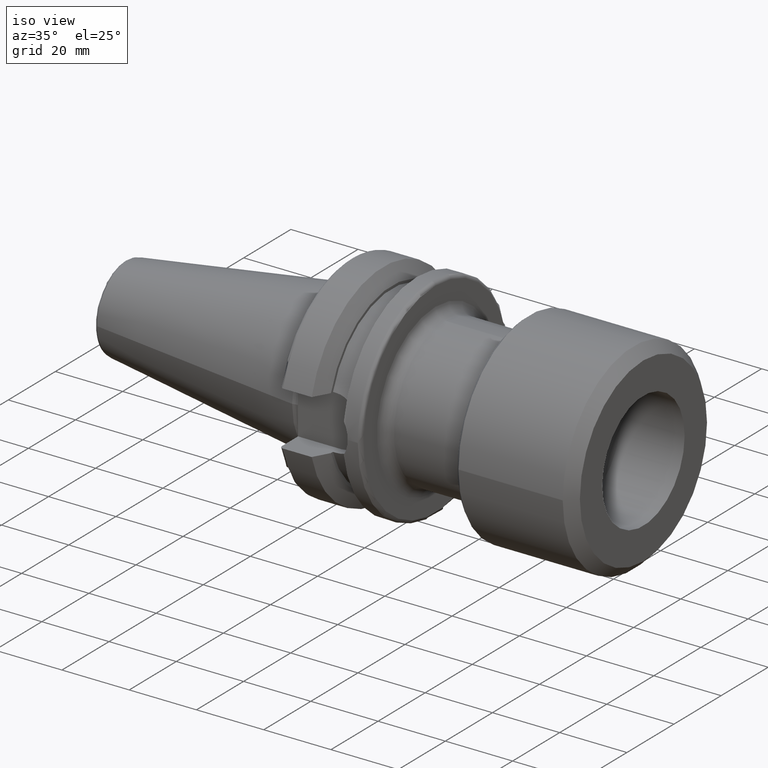
[diagram: clean part render]
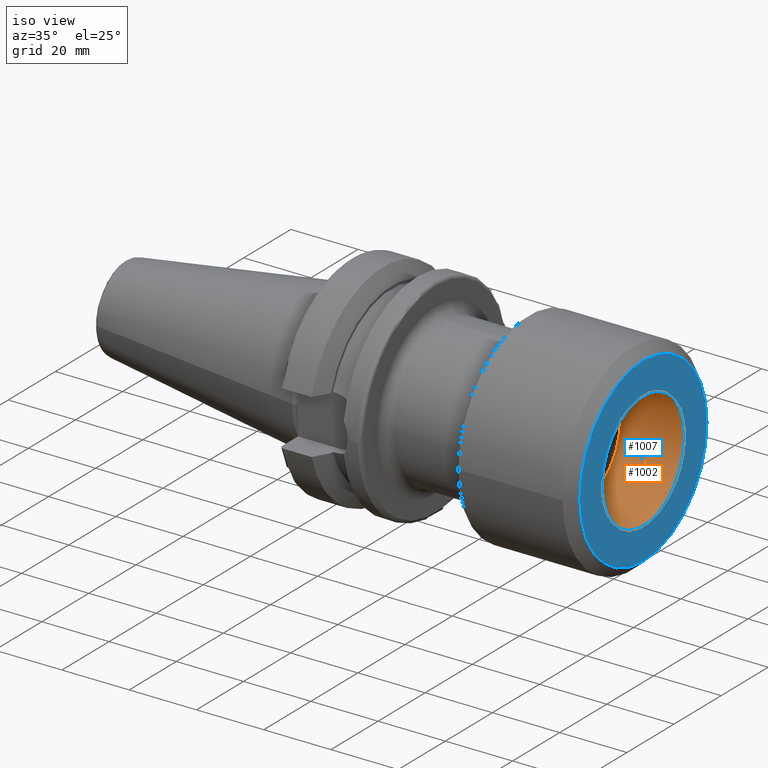
[diagram: same view with the hole feature highlighted: cylindrical wall and planar end face, labeled with their STEP entity ids]
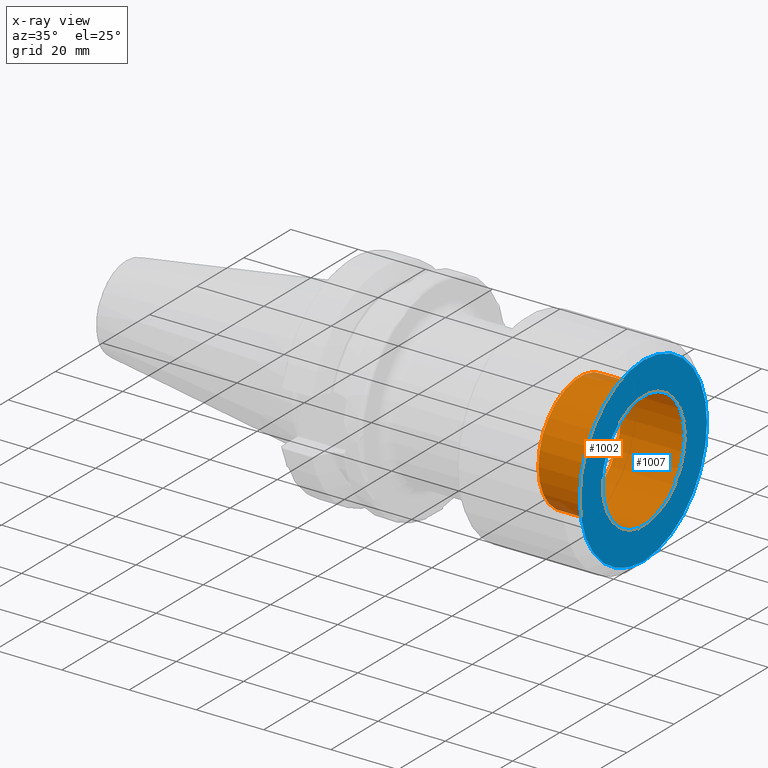
[diagram: x-ray of the same camera — body ghosted, the hole faces saturated]
A machine part, iso view. The highlighted faces form one hole feature of diameter 35 mm: the cylindrical wall (entity #1002, orange) and its adjacent planar end face (entity #1007, blue) — they share a circular edge in the B-rep.
The next image is the same camera in x-ray (body ghosted, the hole faces saturated) — the bore reads through the body.
Wall:
#108=CYLINDRICAL_SURFACE('',#1199,17.5);
#163=FACE_OUTER_BOUND('',#231,.T.);
#231=EDGE_LOOP('',(#906,#907,#908,#909));
#289=LINE('',#1915,#341);
#341=VECTOR('',#1502,17.5);
#407=CIRCLE('',#1200,17.5);
#408=CIRCLE('',#1201,17.5);
#500=VERTEX_POINT('',#1912);
#501=VERTEX_POINT('',#1914);
#637=EDGE_CURVE('',#500,#500,#407,.T.);
#638=EDGE_CURVE('',#500,#501,#289,.T.);
#639=EDGE_CURVE('',#501,#501,#408,.T.);
#906=ORIENTED_EDGE('',*,*,#637,.F.);
#907=ORIENTED_EDGE('',*,*,#638,.T.);
#908=ORIENTED_EDGE('',*,*,#639,.T.);
#909=ORIENTED_EDGE('',*,*,#638,.F.);
#1002=ADVANCED_FACE('',(#163),#108,.F.);
#1199=AXIS2_PLACEMENT_3D('',#1911,#1498,#1499);
#1200=AXIS2_PLACEMENT_3D('',#1913,#1500,#1501);
#1201=AXIS2_PLACEMENT_3D('',#1916,#1503,#1504);
#1498=DIRECTION('center_axis',(-1.,0.,0.));
#1499=DIRECTION('ref_axis',(0.,1.,0.));
#1500=DIRECTION('center_axis',(-1.,0.,0.));
#1501=DIRECTION('ref_axis',(0.,1.,0.));
#1502=DIRECTION('',(-1.,0.,0.));
#1503=DIRECTION('center_axis',(-1.,0.,0.));
#1504=DIRECTION('ref_axis',(0.,0.,1.));
#1911=CARTESIAN_POINT('Origin',(25.5,0.,0.));
#1912=CARTESIAN_POINT('',(35.,-17.5,2.14313189850787E-15));
#1913=CARTESIAN_POINT('Origin',(35.,0.,0.));
#1914=CARTESIAN_POINT('',(16.,-17.5,2.14313189850787E-15));
#1915=CARTESIAN_POINT('',(25.5,-17.5,2.14313189850787E-15));
#1916=CARTESIAN_POINT('Origin',(16.,0.,0.));
End face:
#70=FACE_BOUND('',#238,.T.);
#91=PLANE('',#1213);
#168=FACE_OUTER_BOUND('',#237,.T.);
#237=EDGE_LOOP('',(#927));
#238=EDGE_LOOP('',(#928));
#407=CIRCLE('',#1200,17.5);
#411=CIRCLE('',#1207,27.);
#500=VERTEX_POINT('',#1912);
#504=VERTEX_POINT('',#1925);
#637=EDGE_CURVE('',#500,#500,#407,.T.);
#643=EDGE_CURVE('',#504,#504,#411,.T.);
#927=ORIENTED_EDGE('',*,*,#643,.F.);
#928=ORIENTED_EDGE('',*,*,#637,.T.);
#1007=ADVANCED_FACE('',(#168,#70),#91,.T.);
#1200=AXIS2_PLACEMENT_3D('',#1913,#1500,#1501);
#1207=AXIS2_PLACEMENT_3D('',#1926,#1516,#1517);
#1213=AXIS2_PLACEMENT_3D('',#1938,#1530,#1531);
#1500=DIRECTION('center_axis',(-1.,0.,0.));
#1501=DIRECTION('ref_axis',(0.,1.,0.));
#1516=DIRECTION('center_axis',(-1.,0.,0.));
#1517=DIRECTION('ref_axis',(0.,-1.,0.));
#1530=DIRECTION('center_axis',(1.,0.,0.));
#1531=DIRECTION('ref_axis',(0.,0.,-1.));
#1912=CARTESIAN_POINT('',(35.,-17.5,2.14313189850787E-15));
#1913=CARTESIAN_POINT('Origin',(35.,0.,0.));
#1925=CARTESIAN_POINT('',(35.,27.,-3.30654635769785E-15));
#1926=CARTESIAN_POINT('Origin',(35.,0.,0.));
#1938=CARTESIAN_POINT('Origin',(35.,0.,0.));